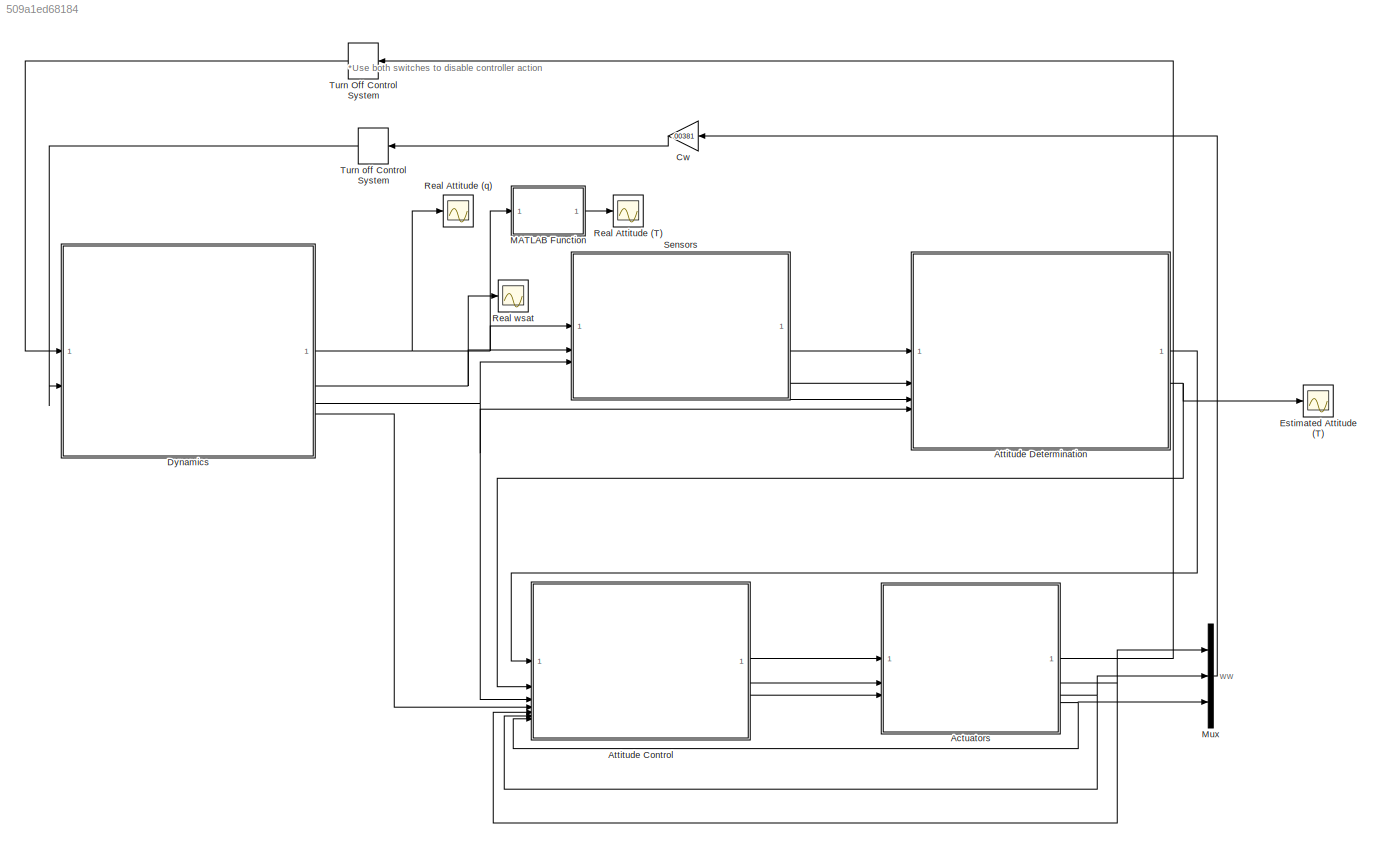
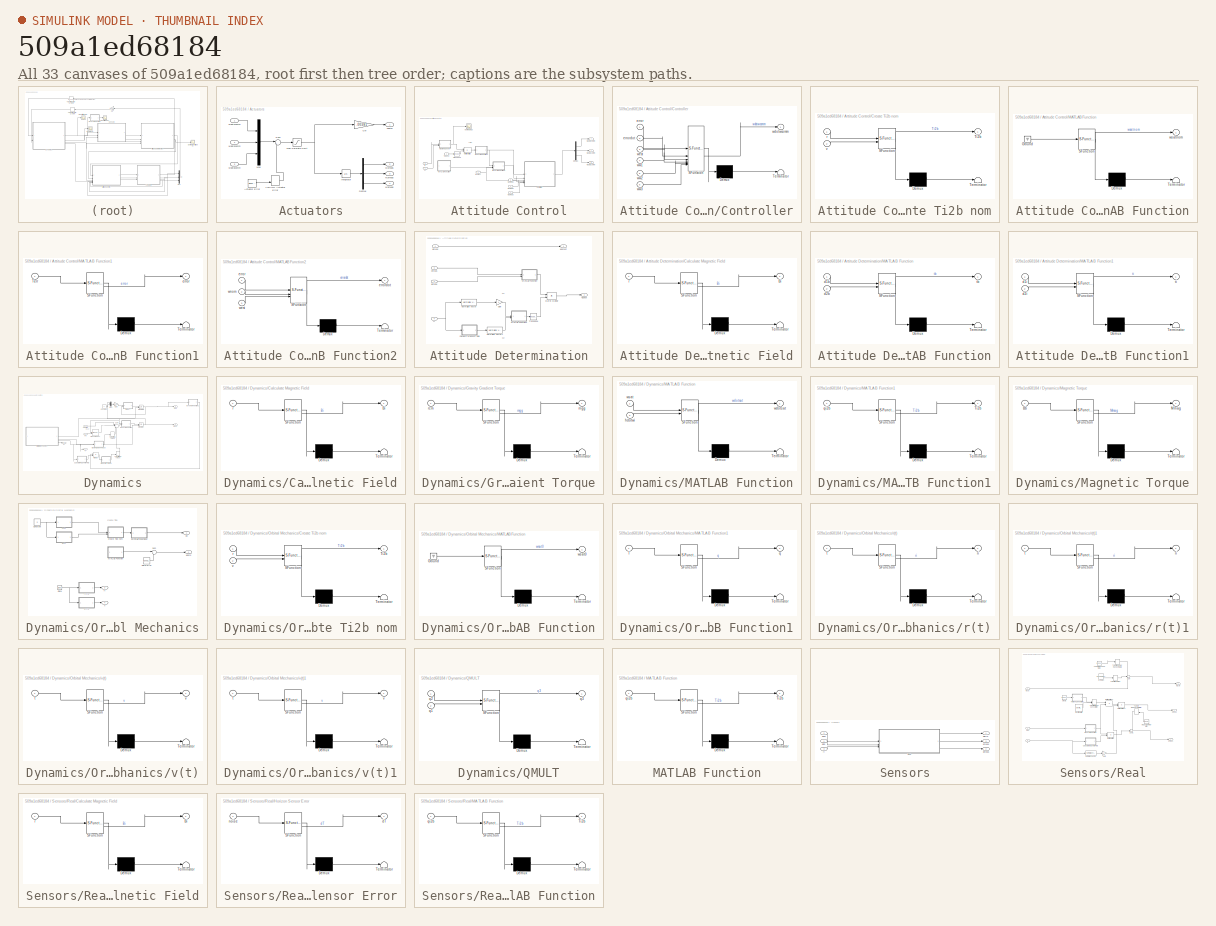
[diagram: thumbnail index - all 33 canvases of the model, root first then tree order]
MODEL slx_509a1ed68184
KIND model
CONFIG AbsTol = auto
CONFIG EnableMultiTasking = off
CONFIG FixedStep = auto
CONFIG MaxStep = auto
CONFIG MinStep = auto
CONFIG RelTol = 1e-3
CONFIG SampleTimeConstraint = Unconstrained
CONFIG SolverName = VariableStepAuto
CONFIG StartTime = 0.0
CONFIG StopTime = 5930
BLOCK [SubSystem] Actuators
BLOCK [Reference] Actuators/Actuator Error  REF=simulink/Sources/Band-Limited
White Noise
  SourceBlock = simulink/Sources/Band-Limited\nWhite Noise
  SourceType = Band-Limited White Noise.
BLOCK [Gain] Actuators/Cw
  Gain = .00381
BLOCK [Demux] Actuators/Demux
  Outputs = 3
BLOCK [Integrator] Actuators/Integrator
  InitialCondition = [0;0;0]
BLOCK [Saturate] Actuators/Max Spinrate Limit
  LowerLimit = -262*[1;1;1]
  UpperLimit = 262*[1;1;1]
BLOCK [Mux] Actuators/Mux
  DisplayOption = bar
  Inputs = 3
BLOCK [Sum] Actuators/Sum
  Inputs = |++
BLOCK [ManualSwitch] Actuators/Turn Off Actuator Error
  CurrentSetting = 0
BLOCK [Outport] Actuators/hdotw
BLOCK [Outport] Actuators/w1meas
  Port = 2
BLOCK [Outport] Actuators/w2meas
  Port = 3
BLOCK [Outport] Actuators/w3meas
  Port = 4
BLOCK [Inport] Actuators/wdot1comm
BLOCK [Inport] Actuators/wdot2comm
  Port = 2
BLOCK [Inport] Actuators/wdot3comm
  Port = 3
BLOCK [SubSystem] Attitude Control
BLOCK [SubSystem] Attitude Control/Controller
  ErrorFcn = Stateflow.Translate.translate
  LibrarySourceBlock = simulink/User-Defined\nFunctions/MATLAB Function
  PermitHierarchicalResolution = ExplicitOnly
  SFBlockType = MATLAB Function
  TreatAsAtomicUnit = on
BLOCK [Demux] Attitude Control/Controller/ Demux 
  Outputs = 1
BLOCK [S-Function] Attitude Control/Controller/ SFunction 
  EnableBusSupport = on
  FunctionName = sf_sfun
  PortCounts = [6 2]
  SFcnIsStateOwnerBlock = off
  SFunctionDeploymentMode = off
  Tag = Stateflow S-Function 18
BLOCK [Terminator] Attitude Control/Controller/ Terminator 
BLOCK [Inport] Attitude Control/Controller/error
BLOCK [Inport] Attitude Control/Controller/errordot
  Port = 2
BLOCK [Outport] Attitude Control/Controller/wdotwcomm
BLOCK [Inport] Attitude Control/Controller/west
  Port = 3
BLOCK [Inport] Attitude Control/Controller/ww1
  Port = 4
BLOCK [Inport] Attitude Control/Controller/ww2
  Port = 5
BLOCK [Inport] Attitude Control/Controller/ww3
  Port = 6
BLOCK [SubSystem] Attitude Control/Create Ti2b nom
  ErrorFcn = Stateflow.Translate.translate
  LibrarySourceBlock = simulink/User-Defined\nFunctions/MATLAB Function
  PermitHierarchicalResolution = ExplicitOnly
  SFBlockType = MATLAB Function
  TreatAsAtomicUnit = on
BLOCK [Demux] Attitude Control/Create Ti2b nom/ Demux 
  Outputs = 1
BLOCK [S-Function] Attitude Control/Create Ti2b nom/ SFunction 
  EnableBusSupport = on
  FunctionName = sf_sfun
  PortCounts = [2 2]
  SFcnIsStateOwnerBlock = off
  SFunctionDeploymentMode = off
  Tag = Stateflow S-Function 14
BLOCK [Terminator] Attitude Control/Create Ti2b nom/ Terminator 
BLOCK [Outport] Attitude Control/Create Ti2b nom/Ti2b
BLOCK [Inport] Attitude Control/Create Ti2b nom/r
BLOCK [Inport] Attitude Control/Create Ti2b nom/v
  Port = 2
BLOCK [Demux] Attitude Control/Demux
  Outputs = 3
BLOCK [SubSystem] Attitude Control/MATLAB Function
  ErrorFcn = Stateflow.Translate.translate
  LibrarySourceBlock = simulink/User-Defined\nFunctions/MATLAB Function
  PermitHierarchicalResolution = ExplicitOnly
  SFBlockType = MATLAB Function
  TreatAsAtomicUnit = on
BLOCK [Demux] Attitude Control/MATLAB Function/ Demux 
  Outputs = 1
BLOCK [Ground] Attitude Control/MATLAB Function/ Ground 
BLOCK [S-Function] Attitude Control/MATLAB Function/ SFunction 
  EnableBusSupport = on
  FunctionName = sf_sfun
  PortCounts = [1 2]
  SFcnIsStateOwnerBlock = off
  SFunctionDeploymentMode = off
  Tag = Stateflow S-Function 15
BLOCK [Terminator] Attitude Control/MATLAB Function/ Terminator 
BLOCK [Outport] Attitude Control/MATLAB Function/wsatnom
BLOCK [SubSystem] Attitude Control/MATLAB Function1
  ErrorFcn = Stateflow.Translate.translate
  LibrarySourceBlock = simulink/User-Defined\nFunctions/MATLAB Function
  PermitHierarchicalResolution = ExplicitOnly
  SFBlockType = MATLAB Function
  TreatAsAtomicUnit = on
BLOCK [Demux] Attitude Control/MATLAB Function1/ Demux 
  Outputs = 1
BLOCK [S-Function] Attitude Control/MATLAB Function1/ SFunction 
  EnableBusSupport = on
  FunctionName = sf_sfun
  PortCounts = [1 2]
  SFcnIsStateOwnerBlock = off
  SFunctionDeploymentMode = off
  Tag = Stateflow S-Function 16
BLOCK [Terminator] Attitude Control/MATLAB Function1/ Terminator 
BLOCK [Inport] Attitude Control/MATLAB Function1/Terr
BLOCK [Outport] Attitude Control/MATLAB Function1/error
BLOCK [SubSystem] Attitude Control/MATLAB Function2
  ErrorFcn = Stateflow.Translate.translate
  LibrarySourceBlock = simulink/User-Defined\nFunctions/MATLAB Function
  PermitHierarchicalResolution = ExplicitOnly
  SFBlockType = MATLAB Function
  TreatAsAtomicUnit = on
BLOCK [Demux] Attitude Control/MATLAB Function2/ Demux 
  Outputs = 1
BLOCK [S-Function] Attitude Control/MATLAB Function2/ SFunction 
  EnableBusSupport = on
  FunctionName = sf_sfun
  PortCounts = [3 2]
  SFcnIsStateOwnerBlock = off
  SFunctionDeploymentMode = off
  Tag = Stateflow S-Function 17
BLOCK [Terminator] Attitude Control/MATLAB Function2/ Terminator 
BLOCK [Inport] Attitude Control/MATLAB Function2/error
BLOCK [Outport] Attitude Control/MATLAB Function2/errordot
BLOCK [Inport] Attitude Control/MATLAB Function2/west
  Port = 3
BLOCK [Inport] Attitude Control/MATLAB Function2/wnom
  Port = 2
BLOCK [Product] Attitude Control/Matrix Multiply
  Multiplication = Matrix(*)
BLOCK [Scope] Attitude Control/Nominal Ti2b
  Floating = off
  NumInputPorts = 1
  ScopeSpecificationString = Simulink.scopes.TimeScopeBlockCfg('CurrentConfiguration', extmgr.ConfigurationSet(extmgr.Configuration('Core','General UI',true),extmgr.Configuration('Core','Source UI',true),extmgr.Configuration('Sources','WiredSimulink',true,'DataLoggingVariableName','ScopeData2'),extmgr.Configuration('Visuals','Time Domain',true,'SerializedDisplays',{struct('MinYLimReal','-1.25','MaxYLimReal','1.25','YLabelReal...<+1399ch>
BLOCK [Inport] Attitude Control/Ti2best
  Port = 2
BLOCK [Math] Attitude Control/Transpose
  Operator = transpose
BLOCK [Inport] Attitude Control/ri
  Port = 3
BLOCK [Inport] Attitude Control/vi
  Port = 4
BLOCK [Inport] Attitude Control/w1meas
  Port = 5
BLOCK [Inport] Attitude Control/w2meas
  Port = 6
BLOCK [Inport] Attitude Control/w3meas
  Port = 7
BLOCK [Outport] Attitude Control/wdot1comm
BLOCK [Outport] Attitude Control/wdot2comm
  Port = 2
BLOCK [Outport] Attitude Control/wdot3comm
  Port = 3
BLOCK [Inport] Attitude Control/wsatest
BLOCK [SubSystem] Attitude Determination
BLOCK [Inport] Attitude Determination/Bmeas
  Port = 2
BLOCK [SubSystem] Attitude Determination/Calculate Magnetic Field
  ErrorFcn = Stateflow.Translate.translate
  LibrarySourceBlock = simulink/User-Defined\nFunctions/MATLAB Function
  PermitHierarchicalResolution = ExplicitOnly
  SFBlockType = MATLAB Function
  TreatAsAtomicUnit = on
BLOCK [Demux] Attitude Determination/Calculate Magnetic Field/ Demux 
  Outputs = 1
BLOCK [S-Function] Attitude Determination/Calculate Magnetic Field/ SFunction 
  EnableBusSupport = on
  FunctionName = sf_sfun
  PortCounts = [1 2]
  SFcnIsStateOwnerBlock = off
  SFunctionDeploymentMode = off
  Tag = Stateflow S-Function 7
BLOCK [Terminator] Attitude Determination/Calculate Magnetic Field/ Terminator 
BLOCK [Outport] Attitude Determination/Calculate Magnetic Field/Bi
BLOCK [Inport] Attitude Determination/Calculate Magnetic Field/r
BLOCK [Gain] Attitude Determination/Gain
  Gain = -1
BLOCK [SubSystem] Attitude Determination/MATLAB Function
  ErrorFcn = Stateflow.Translate.translate
  LibrarySourceBlock = simulink/User-Defined\nFunctions/MATLAB Function
  PermitHierarchicalResolution = ExplicitOnly
  SFBlockType = MATLAB Function
  TreatAsAtomicUnit = on
BLOCK [Demux] Attitude Determination/MATLAB Function/ Demux 
  Outputs = 1
BLOCK [S-Function] Attitude Determination/MATLAB Function/ SFunction 
  EnableBusSupport = on
  FunctionName = sf_sfun
  PortCounts = [2 2]
  SFcnIsStateOwnerBlock = off
  SFunctionDeploymentMode = off
  Tag = Stateflow S-Function 8
BLOCK [Terminator] Attitude Determination/MATLAB Function/ Terminator 
BLOCK [Inport] Attitude Determination/MATLAB Function/d1b
BLOCK [Inport] Attitude Determination/MATLAB Function/d2b
  Port = 2
BLOCK [Outport] Attitude Determination/MATLAB Function/tb
BLOCK [SubSystem] Attitude Determination/MATLAB Function1
  ErrorFcn = Stateflow.Translate.translate
  LibrarySourceBlock = simulink/User-Defined\nFunctions/MATLAB Function
  PermitHierarchicalResolution = ExplicitOnly
  SFBlockType = MATLAB Function
  TreatAsAtomicUnit = on
BLOCK [Demux] Attitude Determination/MATLAB Function1/ Demux 
  Outputs = 1
BLOCK [S-Function] Attitude Determination/MATLAB Function1/ SFunction 
  EnableBusSupport = on
  FunctionName = sf_sfun
  PortCounts = [2 2]
  SFcnIsStateOwnerBlock = off
  SFunctionDeploymentMode = off
  Tag = Stateflow S-Function 9
BLOCK [Terminator] Attitude Determination/MATLAB Function1/ Terminator 
BLOCK [Inport] Attitude Determination/MATLAB Function1/d1i
BLOCK [Inport] Attitude Determination/MATLAB Function1/d2i
  Port = 2
BLOCK [Outport] Attitude Determination/MATLAB Function1/ti
BLOCK [Product] Attitude Determination/Matrix Multiply
  Multiplication = Matrix(*)
BLOCK [Reference] Attitude Determination/Normalize Vector  REF=vrlib/Utilities/Normalize Vector
  SourceBlock = vrlib/Utilities/Normalize Vector
  SourceType = Normalize Vector
BLOCK [Reference] Attitude Determination/Normalize Vector1  REF=vrlib/Utilities/Normalize Vector
  SourceBlock = vrlib/Utilities/Normalize Vector
  SourceType = Normalize Vector
BLOCK [Outport] Attitude Determination/Ti2best
  Port = 2
BLOCK [Math] Attitude Determination/Transpose
  Operator = transpose
BLOCK [Inport] Attitude Determination/dmeas
  Port = 3
BLOCK [Inport] Attitude Determination/ri
  Port = 4
BLOCK [Inport] Attitude Determination/wmeas
BLOCK [Outport] Attitude Determination/wsatest
BLOCK [Gain] Cw
  Gain = .00381
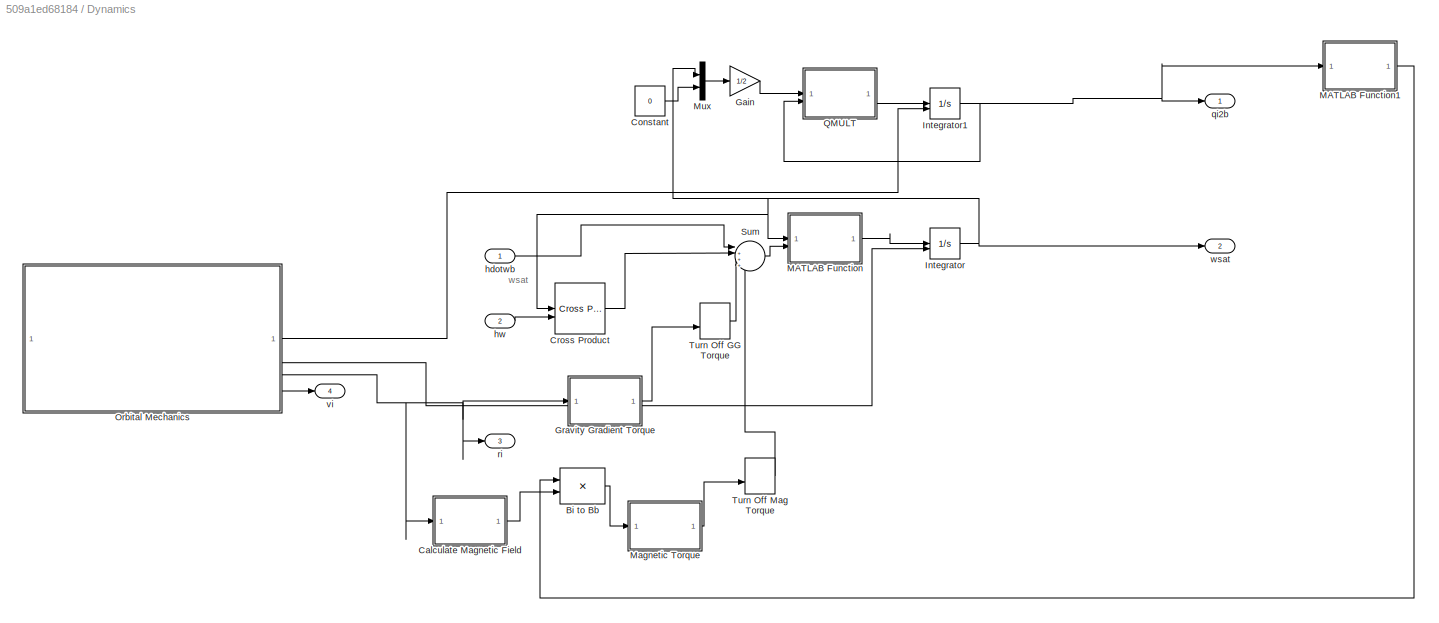
BLOCK [SubSystem] Dynamics
BLOCK [Product] Dynamics/Bi to Bb
  Multiplication = Matrix(*)
BLOCK [SubSystem] Dynamics/Calculate Magnetic Field
  ErrorFcn = Stateflow.Translate.translate
  LibrarySourceBlock = simulink/User-Defined\nFunctions/MATLAB Function
  PermitHierarchicalResolution = ExplicitOnly
  SFBlockType = MATLAB Function
  TreatAsAtomicUnit = on
BLOCK [Demux] Dynamics/Calculate Magnetic Field/ Demux 
  Outputs = 1
BLOCK [S-Function] Dynamics/Calculate Magnetic Field/ SFunction 
  EnableBusSupport = on
  FunctionName = sf_sfun
  PortCounts = [1 2]
  SFcnIsStateOwnerBlock = off
  SFunctionDeploymentMode = off
  Tag = Stateflow S-Function 26
BLOCK [Terminator] Dynamics/Calculate Magnetic Field/ Terminator 
BLOCK [Outport] Dynamics/Calculate Magnetic Field/Bi
BLOCK [Inport] Dynamics/Calculate Magnetic Field/r
BLOCK [Constant] Dynamics/Constant
  Value = 0
BLOCK [Reference] Dynamics/Cross Product  REF=matrix_library/Cross Product
  LibrarySourceBlock = simulink/Matrix\nOperations/Cross Product
  SourceBlock = matrix_library/Cross Product
  SourceType = CrossProduct
BLOCK [Gain] Dynamics/Gain
  Gain = 1/2
BLOCK [SubSystem] Dynamics/Gravity Gradient Torque
  ErrorFcn = Stateflow.Translate.translate
  LibrarySourceBlock = simulink/User-Defined\nFunctions/MATLAB Function
  PermitHierarchicalResolution = ExplicitOnly
  SFBlockType = MATLAB Function
  TreatAsAtomicUnit = on
BLOCK [Demux] Dynamics/Gravity Gradient Torque/ Demux 
  Outputs = 1
BLOCK [S-Function] Dynamics/Gravity Gradient Torque/ SFunction 
  EnableBusSupport = on
  FunctionName = sf_sfun
  PortCounts = [1 2]
  SFcnIsStateOwnerBlock = off
  SFunctionDeploymentMode = off
  Tag = Stateflow S-Function 21
BLOCK [Terminator] Dynamics/Gravity Gradient Torque/ Terminator 
BLOCK [Outport] Dynamics/Gravity Gradient Torque/mgg
BLOCK [Inport] Dynamics/Gravity Gradient Torque/rcm
BLOCK [Integrator] Dynamics/Integrator
  InitialConditionSource = external
BLOCK [Integrator] Dynamics/Integrator1
  InitialConditionSource = external
BLOCK [SubSystem] Dynamics/MATLAB Function
  ErrorFcn = Stateflow.Translate.translate
  LibrarySourceBlock = simulink/User-Defined\nFunctions/MATLAB Function
  PermitHierarchicalResolution = ExplicitOnly
  SFBlockType = MATLAB Function
  TreatAsAtomicUnit = on
BLOCK [Demux] Dynamics/MATLAB Function/ Demux 
  Outputs = 1
BLOCK [S-Function] Dynamics/MATLAB Function/ SFunction 
  EnableBusSupport = on
  FunctionName = sf_sfun
  PortCounts = [2 2]
  SFcnIsStateOwnerBlock = off
  SFunctionDeploymentMode = off
  Tag = Stateflow S-Function 1
BLOCK [Terminator] Dynamics/MATLAB Function/ Terminator 
BLOCK [Inport] Dynamics/MATLAB Function/hdotwi
  Port = 2
BLOCK [Outport] Dynamics/MATLAB Function/wdotsat
BLOCK [Inport] Dynamics/MATLAB Function/wsat
BLOCK [SubSystem] Dynamics/MATLAB Function1
  ErrorFcn = Stateflow.Translate.translate
  LibrarySourceBlock = simulink/User-Defined\nFunctions/MATLAB Function
  PermitHierarchicalResolution = ExplicitOnly
  SFBlockType = MATLAB Function
  TreatAsAtomicUnit = on
BLOCK [Demux] Dynamics/MATLAB Function1/ Demux 
  Outputs = 1
BLOCK [S-Function] Dynamics/MATLAB Function1/ SFunction 
  EnableBusSupport = on
  FunctionName = sf_sfun
  PortCounts = [1 2]
  SFcnIsStateOwnerBlock = off
  SFunctionDeploymentMode = off
  Tag = Stateflow S-Function 22
BLOCK [Terminator] Dynamics/MATLAB Function1/ Terminator 
BLOCK [Outport] Dynamics/MATLAB Function1/Ti2b
BLOCK [Inport] Dynamics/MATLAB Function1/qi2b
BLOCK [SubSystem] Dynamics/Magnetic Torque
  ErrorFcn = Stateflow.Translate.translate
  LibrarySourceBlock = simulink/User-Defined\nFunctions/MATLAB Function
  PermitHierarchicalResolution = ExplicitOnly
  SFBlockType = MATLAB Function
  TreatAsAtomicUnit = on
BLOCK [Demux] Dynamics/Magnetic Torque/ Demux 
  Outputs = 1
BLOCK [S-Function] Dynamics/Magnetic Torque/ SFunction 
  EnableBusSupport = on
  FunctionName = sf_sfun
  PortCounts = [1 2]
  SFcnIsStateOwnerBlock = off
  SFunctionDeploymentMode = off
  Tag = Stateflow S-Function 27
BLOCK [Terminator] Dynamics/Magnetic Torque/ Terminator 
BLOCK [Inport] Dynamics/Magnetic Torque/Bb
BLOCK [Outport] Dynamics/Magnetic Torque/Mmag
BLOCK [Mux] Dynamics/Mux
  DisplayOption = bar
  Inputs = 2
BLOCK [SubSystem] Dynamics/Orbital Mechanics
BLOCK [Clock] Dynamics/Orbital Mechanics/Clock
BLOCK [Constant] Dynamics/Orbital Mechanics/Constant
  Value = 0
BLOCK [SubSystem] Dynamics/Orbital Mechanics/Create Ti2b nom
  ErrorFcn = Stateflow.Translate.translate
  LibrarySourceBlock = simulink/User-Defined\nFunctions/MATLAB Function
  PermitHierarchicalResolution = ExplicitOnly
  SFBlockType = MATLAB Function
  TreatAsAtomicUnit = on
BLOCK [Demux] Dynamics/Orbital Mechanics/Create Ti2b nom/ Demux 
  Outputs = 1
BLOCK [S-Function] Dynamics/Orbital Mechanics/Create Ti2b nom/ SFunction 
  EnableBusSupport = on
  FunctionName = sf_sfun
  PortCounts = [2 2]
  SFcnIsStateOwnerBlock = off
  SFunctionDeploymentMode = off
  Tag = Stateflow S-Function 11
BLOCK [Terminator] Dynamics/Orbital Mechanics/Create Ti2b nom/ Terminator 
BLOCK [Outport] Dynamics/Orbital Mechanics/Create Ti2b nom/Ti2b
BLOCK [Inport] Dynamics/Orbital Mechanics/Create Ti2b nom/r
BLOCK [Inport] Dynamics/Orbital Mechanics/Create Ti2b nom/v
  Port = 2
BLOCK [SubSystem] Dynamics/Orbital Mechanics/MATLAB Function
  ErrorFcn = Stateflow.Translate.translate
  LibrarySourceBlock = simulink/User-Defined\nFunctions/MATLAB Function
  PermitHierarchicalResolution = ExplicitOnly
  SFBlockType = MATLAB Function
  TreatAsAtomicUnit = on
BLOCK [Demux] Dynamics/Orbital Mechanics/MATLAB Function/ Demux 
  Outputs = 1
BLOCK [Ground] Dynamics/Orbital Mechanics/MATLAB Function/ Ground 
BLOCK [S-Function] Dynamics/Orbital Mechanics/MATLAB Function/ SFunction 
  EnableBusSupport = on
  FunctionName = sf_sfun
  PortCounts = [1 2]
  SFcnIsStateOwnerBlock = off
  SFunctionDeploymentMode = off
  Tag = Stateflow S-Function 12
BLOCK [Terminator] Dynamics/Orbital Mechanics/MATLAB Function/ Terminator 
BLOCK [Outport] Dynamics/Orbital Mechanics/MATLAB Function/wsat0
BLOCK [SubSystem] Dynamics/Orbital Mechanics/MATLAB Function1
  ErrorFcn = Stateflow.Translate.translate
  LibrarySourceBlock = simulink/User-Defined\nFunctions/MATLAB Function
  PermitHierarchicalResolution = ExplicitOnly
  SFBlockType = MATLAB Function
  TreatAsAtomicUnit = on
BLOCK [Demux] Dynamics/Orbital Mechanics/MATLAB Function1/ Demux 
  Outputs = 1
BLOCK [S-Function] Dynamics/Orbital Mechanics/MATLAB Function1/ SFunction 
  EnableBusSupport = on
  FunctionName = sf_sfun
  PortCounts = [1 2]
  SFcnIsStateOwnerBlock = off
  SFunctionDeploymentMode = off
  Tag = Stateflow S-Function 13
BLOCK [Terminator] Dynamics/Orbital Mechanics/MATLAB Function1/ Terminator 
BLOCK [Inport] Dynamics/Orbital Mechanics/MATLAB Function1/T
BLOCK [Outport] Dynamics/Orbital Mechanics/MATLAB Function1/q
BLOCK [Constant] Dynamics/Orbital Mechanics/Roll w error
  Value = [0.005; 0; 0]
BLOCK [Sum] Dynamics/Orbital Mechanics/Sum
  Inputs = |++
BLOCK [Outport] Dynamics/Orbital Mechanics/q0
BLOCK [SubSystem] Dynamics/Orbital Mechanics/r(t)
  ErrorFcn = Stateflow.Translate.translate
  LibrarySourceBlock = simulink/User-Defined\nFunctions/MATLAB Function
  PermitHierarchicalResolution = ExplicitOnly
  SFBlockType = MATLAB Function
  TreatAsAtomicUnit = on
BLOCK [Demux] Dynamics/Orbital Mechanics/r(t)/ Demux 
  Outputs = 1
BLOCK [S-Function] Dynamics/Orbital Mechanics/r(t)/ SFunction 
  EnableBusSupport = on
  FunctionName = sf_sfun
  PortCounts = [1 2]
  SFcnIsStateOwnerBlock = off
  SFunctionDeploymentMode = off
  Tag = Stateflow S-Function 2
BLOCK [Terminator] Dynamics/Orbital Mechanics/r(t)/ Terminator 
BLOCK [Outport] Dynamics/Orbital Mechanics/r(t)/ri
BLOCK [Inport] Dynamics/Orbital Mechanics/r(t)/t
BLOCK [SubSystem] Dynamics/Orbital Mechanics/r(t)1
  ErrorFcn = Stateflow.Translate.translate
  LibrarySourceBlock = simulink/User-Defined\nFunctions/MATLAB Function
  PermitHierarchicalResolution = ExplicitOnly
  SFBlockType = MATLAB Function
  TreatAsAtomicUnit = on
BLOCK [Demux] Dynamics/Orbital Mechanics/r(t)1/ Demux 
  Outputs = 1
BLOCK [S-Function] Dynamics/Orbital Mechanics/r(t)1/ SFunction 
  EnableBusSupport = on
  FunctionName = sf_sfun
  PortCounts = [1 2]
  SFcnIsStateOwnerBlock = off
  SFunctionDeploymentMode = off
  Tag = Stateflow S-Function 19
BLOCK [Terminator] Dynamics/Orbital Mechanics/r(t)1/ Terminator 
BLOCK [Outport] Dynamics/Orbital Mechanics/r(t)1/ri
BLOCK [Inport] Dynamics/Orbital Mechanics/r(t)1/t
BLOCK [Outport] Dynamics/Orbital Mechanics/ri
  Port = 3
BLOCK [Outport] Dynamics/Orbital Mechanics/v
  Port = 4
BLOCK [SubSystem] Dynamics/Orbital Mechanics/v(t)
  ErrorFcn = Stateflow.Translate.translate
  LibrarySourceBlock = simulink/User-Defined\nFunctions/MATLAB Function
  PermitHierarchicalResolution = ExplicitOnly
  SFBlockType = MATLAB Function
  TreatAsAtomicUnit = on
BLOCK [Demux] Dynamics/Orbital Mechanics/v(t)/ Demux 
  Outputs = 1
BLOCK [S-Function] Dynamics/Orbital Mechanics/v(t)/ SFunction 
  EnableBusSupport = on
  FunctionName = sf_sfun
  PortCounts = [1 2]
  SFcnIsStateOwnerBlock = off
  SFunctionDeploymentMode = off
  Tag = Stateflow S-Function 3
BLOCK [Terminator] Dynamics/Orbital Mechanics/v(t)/ Terminator 
BLOCK [Inport] Dynamics/Orbital Mechanics/v(t)/t
BLOCK [Outport] Dynamics/Orbital Mechanics/v(t)/v
BLOCK [SubSystem] Dynamics/Orbital Mechanics/v(t)1
  ErrorFcn = Stateflow.Translate.translate
  LibrarySourceBlock = simulink/User-Defined\nFunctions/MATLAB Function
  PermitHierarchicalResolution = ExplicitOnly
  SFBlockType = MATLAB Function
  TreatAsAtomicUnit = on
BLOCK [Demux] Dynamics/Orbital Mechanics/v(t)1/ Demux 
  Outputs = 1
BLOCK [S-Function] Dynamics/Orbital Mechanics/v(t)1/ SFunction 
  EnableBusSupport = on
  FunctionName = sf_sfun
  PortCounts = [1 2]
  SFcnIsStateOwnerBlock = off
  SFunctionDeploymentMode = off
  Tag = Stateflow S-Function 20
BLOCK [Terminator] Dynamics/Orbital Mechanics/v(t)1/ Terminator 
BLOCK [Inport] Dynamics/Orbital Mechanics/v(t)1/t
BLOCK [Outport] Dynamics/Orbital Mechanics/v(t)1/v
BLOCK [Outport] Dynamics/Orbital Mechanics/wsat0
  Port = 2
BLOCK [SubSystem] Dynamics/QMULT
  ErrorFcn = Stateflow.Translate.translate
  LibrarySourceBlock = simulink/User-Defined\nFunctions/MATLAB Function
  PermitHierarchicalResolution = ExplicitOnly
  SFBlockType = MATLAB Function
  TreatAsAtomicUnit = on
BLOCK [Demux] Dynamics/QMULT/ Demux 
  Outputs = 1
BLOCK [S-Function] Dynamics/QMULT/ SFunction 
  EnableBusSupport = on
  FunctionName = sf_sfun
  PortCounts = [2 2]
  SFcnIsStateOwnerBlock = off
  SFunctionDeploymentMode = off
  Tag = Stateflow S-Function 10
BLOCK [Terminator] Dynamics/QMULT/ Terminator 
BLOCK [Inport] Dynamics/QMULT/q1
  Port = 2
BLOCK [Inport] Dynamics/QMULT/q2
BLOCK [Outport] Dynamics/QMULT/q3
BLOCK [Sum] Dynamics/Sum
  Inputs = |++++
BLOCK [ManualSwitch] Dynamics/Turn Off GG Torque
  CurrentSetting = 0
BLOCK [ManualSwitch] Dynamics/Turn Off Mag Torque
  CurrentSetting = 0
BLOCK [Inport] Dynamics/hdotwb
BLOCK [Inport] Dynamics/hw
  Port = 2
BLOCK [Outport] Dynamics/qi2b
BLOCK [Outport] Dynamics/ri
  Port = 3
BLOCK [Outport] Dynamics/vi
  Port = 4
BLOCK [Outport] Dynamics/wsat
  Port = 2
BLOCK [Scope] Estimated Attitude (T)
  Floating = off
  NumInputPorts = 1
  ScopeSpecificationString = Simulink.scopes.TimeScopeBlockCfg('CurrentConfiguration', extmgr.ConfigurationSet(extmgr.Configuration('Core','General UI',true),extmgr.Configuration('Core','Source UI',true),extmgr.Configuration('Sources','WiredSimulink',true,'DataLoggingVariableName','ScopeData4'),extmgr.Configuration('Visuals','Time Domain',true),extmgr.Configuration('Tools','Plot Navigation',true),extmgr.Configuration('Tools',...<+40ch>
BLOCK [SubSystem] MATLAB Function
  ErrorFcn = Stateflow.Translate.translate
  LibrarySourceBlock = simulink/User-Defined\nFunctions/MATLAB Function
  PermitHierarchicalResolution = ExplicitOnly
  SFBlockType = MATLAB Function
  TreatAsAtomicUnit = on
BLOCK [Demux] MATLAB Function/ Demux 
  Outputs = 1
BLOCK [S-Function] MATLAB Function/ SFunction 
  EnableBusSupport = on
  FunctionName = sf_sfun
  PortCounts = [1 2]
  SFcnIsStateOwnerBlock = off
  SFunctionDeploymentMode = off
  Tag = Stateflow S-Function 25
BLOCK [Terminator] MATLAB Function/ Terminator 
BLOCK [Outport] MATLAB Function/Ti2b
BLOCK [Inport] MATLAB Function/qi2b
BLOCK [Mux] Mux
  DisplayOption = bar
  Inputs = 3
BLOCK [Scope] Real Attitude (T)
  Floating = off
  NumInputPorts = 1
  ScopeSpecificationString = Simulink.scopes.TimeScopeBlockCfg('CurrentConfiguration', extmgr.ConfigurationSet(extmgr.Configuration('Core','General UI',true),extmgr.Configuration('Core','Source UI',true),extmgr.Configuration('Sources','WiredSimulink',true,'DataLoggingVariableName','ScopeData5'),extmgr.Configuration('Visuals','Time Domain',true,'SerializedDisplays',{struct('MinYLimReal','-1.08524','MaxYLimReal','1.23169','YLab...<+1394ch>
BLOCK [Scope] Real Attitude (q)
  Floating = off
  NumInputPorts = 1
  ScopeSpecificationString = Simulink.scopes.TimeScopeBlockCfg('CurrentConfiguration', extmgr.ConfigurationSet(extmgr.Configuration('Core','General UI',true),extmgr.Configuration('Core','Source UI',true),extmgr.Configuration('Sources','WiredSimulink',true),extmgr.Configuration('Visuals','Time Domain',true,'SerializedDisplays',{struct('MinYLimReal','-1.0557','MaxYLimReal','1.14383','YLabelReal','','MinYLimMag','0.00000','MaxYL...<+1406ch>
BLOCK [Scope] Real wsat
  Floating = off
  NumInputPorts = 1
  ScopeSpecificationString = Simulink.scopes.TimeScopeBlockCfg('CurrentConfiguration', extmgr.ConfigurationSet(extmgr.Configuration('Core','General UI',true),extmgr.Configuration('Core','Source UI',true),extmgr.Configuration('Sources','WiredSimulink',true,'DataLoggingVariableName','ScopeData1'),extmgr.Configuration('Visuals','Time Domain',true,'SerializedDisplays',{struct('MinYLimReal','-0.01644','MaxYLimReal','0.06088','YLab...<+1451ch>
BLOCK [SubSystem] Sensors
BLOCK [Outport] Sensors/Bmeas
  Port = 2
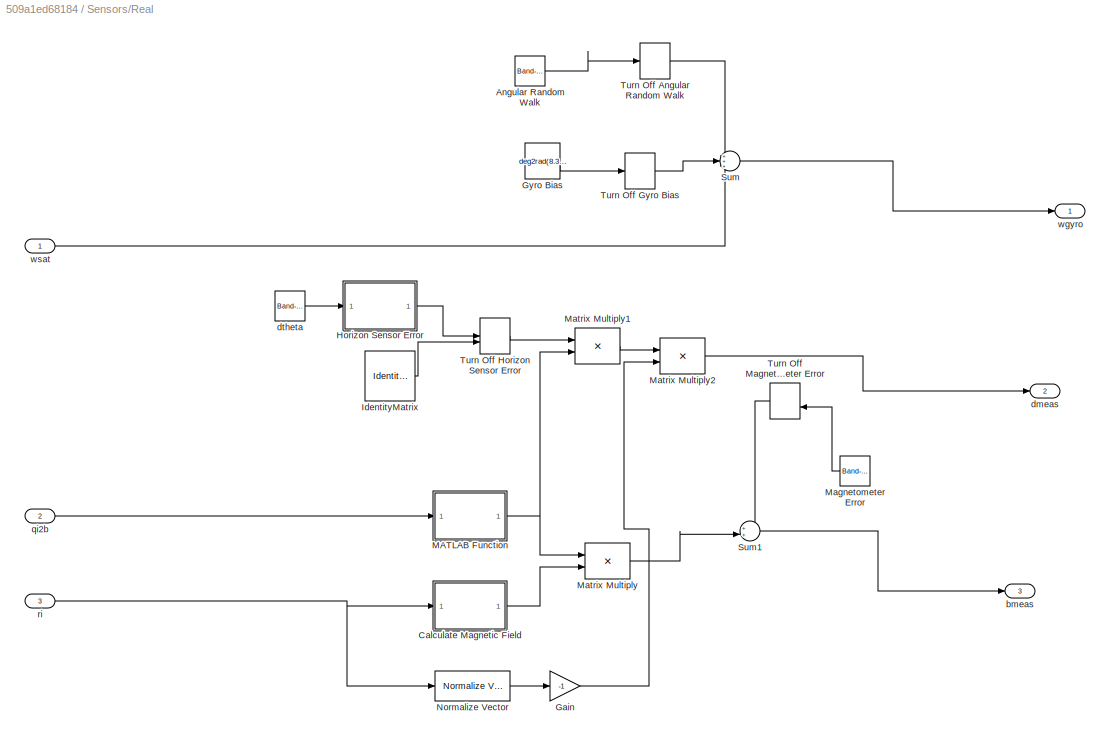
BLOCK [SubSystem] Sensors/Real
BLOCK [Reference] Sensors/Real/Angular Random Walk  REF=simulink/Sources/Band-Limited
White Noise
  SourceBlock = simulink/Sources/Band-Limited\nWhite Noise
  SourceType = Band-Limited White Noise.
BLOCK [SubSystem] Sensors/Real/Calculate Magnetic Field
  ErrorFcn = Stateflow.Translate.translate
  LibrarySourceBlock = simulink/User-Defined\nFunctions/MATLAB Function
  PermitHierarchicalResolution = ExplicitOnly
  SFBlockType = MATLAB Function
  TreatAsAtomicUnit = on
BLOCK [Demux] Sensors/Real/Calculate Magnetic Field/ Demux 
  Outputs = 1
BLOCK [S-Function] Sensors/Real/Calculate Magnetic Field/ SFunction 
  EnableBusSupport = on
  FunctionName = sf_sfun
  PortCounts = [1 2]
  SFcnIsStateOwnerBlock = off
  SFunctionDeploymentMode = off
  Tag = Stateflow S-Function 5
BLOCK [Terminator] Sensors/Real/Calculate Magnetic Field/ Terminator 
BLOCK [Outport] Sensors/Real/Calculate Magnetic Field/Bi
BLOCK [Inport] Sensors/Real/Calculate Magnetic Field/r
BLOCK [Gain] Sensors/Real/Gain
  Gain = -1
BLOCK [Constant] Sensors/Real/Gyro Bias
  Value = deg2rad(8.3e-5)*[1;1;1]
BLOCK [SubSystem] Sensors/Real/Horizon Sensor Error
  ErrorFcn = Stateflow.Translate.translate
  LibrarySourceBlock = simulink/User-Defined\nFunctions/MATLAB Function
  PermitHierarchicalResolution = ExplicitOnly
  SFBlockType = MATLAB Function
  TreatAsAtomicUnit = on
BLOCK [Demux] Sensors/Real/Horizon Sensor Error/ Demux 
  Outputs = 1
BLOCK [S-Function] Sensors/Real/Horizon Sensor Error/ SFunction 
  EnableBusSupport = on
  FunctionName = sf_sfun
  PortCounts = [1 2]
  SFcnIsStateOwnerBlock = off
  SFunctionDeploymentMode = off
  Tag = Stateflow S-Function 6
BLOCK [Terminator] Sensors/Real/Horizon Sensor Error/ Terminator 
BLOCK [Outport] Sensors/Real/Horizon Sensor Error/dT
BLOCK [Inport] Sensors/Real/Horizon Sensor Error/noise
BLOCK [IdentityMatrix] Sensors/Real/IdentityMatrix
  OutputDimensions = 3
BLOCK [SubSystem] Sensors/Real/MATLAB Function
  ErrorFcn = Stateflow.Translate.translate
  LibrarySourceBlock = simulink/User-Defined\nFunctions/MATLAB Function
  PermitHierarchicalResolution = ExplicitOnly
  SFBlockType = MATLAB Function
  TreatAsAtomicUnit = on
BLOCK [Demux] Sensors/Real/MATLAB Function/ Demux 
  Outputs = 1
BLOCK [S-Function] Sensors/Real/MATLAB Function/ SFunction 
  EnableBusSupport = on
  FunctionName = sf_sfun
  PortCounts = [1 2]
  SFcnIsStateOwnerBlock = off
  SFunctionDeploymentMode = off
  Tag = Stateflow S-Function 4
BLOCK [Terminator] Sensors/Real/MATLAB Function/ Terminator 
BLOCK [Outport] Sensors/Real/MATLAB Function/Ti2b
BLOCK [Inport] Sensors/Real/MATLAB Function/qi2b
BLOCK [Reference] Sensors/Real/Magnetometer Error  REF=simulink/Sources/Band-Limited
White Noise
  SourceBlock = simulink/Sources/Band-Limited\nWhite Noise
  SourceType = Band-Limited White Noise.
BLOCK [Product] Sensors/Real/Matrix Multiply
  Multiplication = Matrix(*)
BLOCK [Product] Sensors/Real/Matrix Multiply1
  Multiplication = Matrix(*)
BLOCK [Product] Sensors/Real/Matrix Multiply2
  Multiplication = Matrix(*)
BLOCK [Reference] Sensors/Real/Normalize Vector  REF=vrlib/Utilities/Normalize Vector
  SourceBlock = vrlib/Utilities/Normalize Vector
  SourceType = Normalize Vector
BLOCK [Sum] Sensors/Real/Sum
  Inputs = +++
BLOCK [Sum] Sensors/Real/Sum1
  Inputs = ++|
BLOCK [ManualSwitch] Sensors/Real/Turn Off Angular Random Walk
BLOCK [ManualSwitch] Sensors/Real/Turn Off Gyro Bias
BLOCK [ManualSwitch] Sensors/Real/Turn Off Horizon Sensor Error
BLOCK [ManualSwitch] Sensors/Real/Turn Off Magnetometer Error
  CurrentSetting = 0
BLOCK [Outport] Sensors/Real/bmeas
  Port = 3
BLOCK [Outport] Sensors/Real/dmeas
  Port = 2
BLOCK [Reference] Sensors/Real/dtheta  REF=simulink/Sources/Band-Limited
White Noise
  SourceBlock = simulink/Sources/Band-Limited\nWhite Noise
  SourceType = Band-Limited White Noise.
BLOCK [Inport] Sensors/Real/qi2b
  Port = 2
BLOCK [Inport] Sensors/Real/ri
  Port = 3
BLOCK [Outport] Sensors/Real/wgyro
BLOCK [Inport] Sensors/Real/wsat
BLOCK [Outport] Sensors/dmeas
  Port = 3
BLOCK [Inport] Sensors/qi2b
BLOCK [Inport] Sensors/ri
  Port = 3
BLOCK [Outport] Sensors/wgyro
BLOCK [Inport] Sensors/wsat
  Port = 2
BLOCK [ManualSwitch] Turn Off Control System
BLOCK [ManualSwitch] Turn off Control System
ANNOTATION (root): *Use both switches to disable controller action
ANNOTATION (root): ww
ANNOTATION Attitude Control: Terror
ANNOTATION Attitude Determination: d1i
ANNOTATION Attitude Determination: d2i
ANNOTATION Dynamics: wsat
ANNOTATION Dynamics/Orbital Mechanics: create Ti2b
LINE Actuators/Actuator Error:1 -> Actuators/Turn Off Actuator Error:2
LINE Actuators/Cw:1 -> Actuators/hdotw:1
LINE Actuators/Demux:1 -> Actuators/w1meas:1
LINE Actuators/Demux:2 -> Actuators/w2meas:1
LINE Actuators/Demux:3 -> Actuators/w3meas:1
LINE Actuators/Integrator:1 -> Actuators/Demux:1
NET Actuators/Max Spinrate Limit:1 -> Actuators/Cw:1, Actuators/Integrator:1
LINE Actuators/Mux:1 -> Actuators/Sum:1
LINE Actuators/Sum:1 -> Actuators/Max Spinrate Limit:1
LINE Actuators/Turn Off Actuator Error:1 -> Actuators/Sum:2
LINE Actuators/wdot1comm:1 -> Actuators/Mux:1
LINE Actuators/wdot2comm:1 -> Actuators/Mux:2
LINE Actuators/wdot3comm:1 -> Actuators/Mux:3
LINE Actuators:1 -> Turn Off Control System:1
NET Actuators:2 -> Attitude Control:5, Mux:1
NET Actuators:3 -> Attitude Control:6, Mux:2
NET Actuators:4 -> Attitude Control:7, Mux:3
LINE Attitude Control/Controller:1 -> Attitude Control/Demux:1
NET Attitude Control/Create Ti2b nom:1 -> Attitude Control/Matrix Multiply:1, Attitude Control/Nominal Ti2b:1
LINE Attitude Control/Demux:1 -> Attitude Control/wdot1comm:1
LINE Attitude Control/Demux:2 -> Attitude Control/wdot2comm:1
LINE Attitude Control/Demux:3 -> Attitude Control/wdot3comm:1
NET Attitude Control/MATLAB Function1:1 -> Attitude Control/Controller:1, Attitude Control/MATLAB Function2:1
LINE Attitude Control/MATLAB Function2:1 -> Attitude Control/Controller:2
LINE Attitude Control/MATLAB Function:1 -> Attitude Control/MATLAB Function2:2
LINE Attitude Control/Matrix Multiply:1 -> Attitude Control/MATLAB Function1:1
LINE Attitude Control/Ti2best:1 -> Attitude Control/Transpose:1
LINE Attitude Control/Transpose:1 -> Attitude Control/Matrix Multiply:2
LINE Attitude Control/ri:1 -> Attitude Control/Create Ti2b nom:1
LINE Attitude Control/vi:1 -> Attitude Control/Create Ti2b nom:2
LINE Attitude Control/w1meas:1 -> Attitude Control/Controller:4
LINE Attitude Control/w2meas:1 -> Attitude Control/Controller:5
LINE Attitude Control/w3meas:1 -> Attitude Control/Controller:6
NET Attitude Control/wsatest:1 -> Attitude Control/Controller:3, Attitude Control/MATLAB Function2:3
LINE Attitude Control:1 -> Actuators:1
LINE Attitude Control:2 -> Actuators:2
LINE Attitude Control:3 -> Actuators:3
LINE Attitude Determination/Bmeas:1 -> Attitude Determination/MATLAB Function:2
LINE Attitude Determination/Calculate Magnetic Field:1 -> Attitude Determination/Normalize Vector1:1
LINE Attitude Determination/Gain:1 -> Attitude Determination/MATLAB Function1:1
LINE Attitude Determination/MATLAB Function1:1 -> Attitude Determination/Transpose:1
LINE Attitude Determination/MATLAB Function:1 -> Attitude Determination/Matrix Multiply:1
LINE Attitude Determination/Matrix Multiply:1 -> Attitude Determination/Ti2best:1
LINE Attitude Determination/Normalize Vector1:1 -> Attitude Determination/MATLAB Function1:2
LINE Attitude Determination/Normalize Vector:1 -> Attitude Determination/Gain:1
LINE Attitude Determination/Transpose:1 -> Attitude Determination/Matrix Multiply:2
LINE Attitude Determination/dmeas:1 -> Attitude Determination/MATLAB Function:1
NET Attitude Determination/ri:1 -> Attitude Determination/Calculate Magnetic Field:1, Attitude Determination/Normalize Vector:1
LINE Attitude Determination/wmeas:1 -> Attitude Determination/wsatest:1
LINE Attitude Determination:1 -> Attitude Control:1
NET Attitude Determination:2 -> Attitude Control:2, Estimated Attitude (T):1
LINE Cw:1 -> Turn off Control System:1
LINE Dynamics/Bi to Bb:1 -> Dynamics/Magnetic Torque:1
LINE Dynamics/Calculate Magnetic Field:1 -> Dynamics/Bi to Bb:2
LINE Dynamics/Constant:1 -> Dynamics/Mux:2
LINE Dynamics/Cross Product:1 -> Dynamics/Sum:2
LINE Dynamics/Gain:1 -> Dynamics/QMULT:1
LINE Dynamics/Gravity Gradient Torque:1 -> Dynamics/Turn Off GG Torque:2
NET Dynamics/Integrator1:1 -> Dynamics/MATLAB Function1:1, Dynamics/QMULT:2, Dynamics/qi2b:1
NET Dynamics/Integrator:1 -> Dynamics/Cross Product:1, Dynamics/MATLAB Function:1, Dynamics/Mux:1, Dynamics/wsat:1
LINE Dynamics/MATLAB Function1:1 -> Dynamics/Bi to Bb:1
LINE Dynamics/MATLAB Function:1 -> Dynamics/Integrator:1
LINE Dynamics/Magnetic Torque:1 -> Dynamics/Turn Off Mag Torque:2
LINE Dynamics/Mux:1 -> Dynamics/Gain:1
NET Dynamics/Orbital Mechanics/Clock:1 -> Dynamics/Orbital Mechanics/r(t)1:1, Dynamics/Orbital Mechanics/v(t)1:1
NET Dynamics/Orbital Mechanics/Constant:1 -> Dynamics/Orbital Mechanics/r(t):1, Dynamics/Orbital Mechanics/v(t):1
LINE Dynamics/Orbital Mechanics/Create Ti2b nom:1 -> Dynamics/Orbital Mechanics/MATLAB Function1:1
LINE Dynamics/Orbital Mechanics/MATLAB Function1:1 -> Dynamics/Orbital Mechanics/q0:1
LINE Dynamics/Orbital Mechanics/MATLAB Function:1 -> Dynamics/Orbital Mechanics/Sum:1
LINE Dynamics/Orbital Mechanics/Roll w error:1 -> Dynamics/Orbital Mechanics/Sum:2
LINE Dynamics/Orbital Mechanics/Sum:1 -> Dynamics/Orbital Mechanics/wsat0:1
LINE Dynamics/Orbital Mechanics/r(t)1:1 -> Dynamics/Orbital Mechanics/ri:1
LINE Dynamics/Orbital Mechanics/r(t):1 -> Dynamics/Orbital Mechanics/Create Ti2b nom:1
LINE Dynamics/Orbital Mechanics/v(t)1:1 -> Dynamics/Orbital Mechanics/v:1
LINE Dynamics/Orbital Mechanics/v(t):1 -> Dynamics/Orbital Mechanics/Create Ti2b nom:2
LINE Dynamics/Orbital Mechanics:1 -> Dynamics/Integrator1:2
LINE Dynamics/Orbital Mechanics:2 -> Dynamics/Integrator:2
NET Dynamics/Orbital Mechanics:3 -> Dynamics/Calculate Magnetic Field:1, Dynamics/Gravity Gradient Torque:1, Dynamics/ri:1
LINE Dynamics/Orbital Mechanics:4 -> Dynamics/vi:1
LINE Dynamics/QMULT:1 -> Dynamics/Integrator1:1
LINE Dynamics/Sum:1 -> Dynamics/MATLAB Function:2
LINE Dynamics/Turn Off GG Torque:1 -> Dynamics/Sum:3
LINE Dynamics/Turn Off Mag Torque:1 -> Dynamics/Sum:4
LINE Dynamics/hdotwb:1 -> Dynamics/Sum:1
LINE Dynamics/hw:1 -> Dynamics/Cross Product:2
NET Dynamics:1 -> MATLAB Function:1, Real Attitude (q):1, Sensors:1
NET Dynamics:2 -> Real wsat:1, Sensors:2
NET Dynamics:3 -> Attitude Control:3, Attitude Determination:4, Sensors:3
LINE Dynamics:4 -> Attitude Control:4
LINE MATLAB Function:1 -> Real Attitude (T):1
LINE Mux:1 -> Cw:1
LINE Sensors/Real/Angular Random Walk:1 -> Sensors/Real/Turn Off Angular Random Walk:1
LINE Sensors/Real/Calculate Magnetic Field:1 -> Sensors/Real/Matrix Multiply:2
LINE Sensors/Real/Gain:1 -> Sensors/Real/Matrix Multiply2:2
LINE Sensors/Real/Gyro Bias:1 -> Sensors/Real/Turn Off Gyro Bias:1
LINE Sensors/Real/Horizon Sensor Error:1 -> Sensors/Real/Turn Off Horizon Sensor Error:1
LINE Sensors/Real/IdentityMatrix:1 -> Sensors/Real/Turn Off Horizon Sensor Error:2
NET Sensors/Real/MATLAB Function:1 -> Sensors/Real/Matrix Multiply1:2, Sensors/Real/Matrix Multiply:1
LINE Sensors/Real/Magnetometer Error:1 -> Sensors/Real/Turn Off Magnetometer Error:2
LINE Sensors/Real/Matrix Multiply1:1 -> Sensors/Real/Matrix Multiply2:1
LINE Sensors/Real/Matrix Multiply2:1 -> Sensors/Real/dmeas:1
LINE Sensors/Real/Matrix Multiply:1 -> Sensors/Real/Sum1:2
LINE Sensors/Real/Normalize Vector:1 -> Sensors/Real/Gain:1
LINE Sensors/Real/Sum1:1 -> Sensors/Real/bmeas:1
LINE Sensors/Real/Sum:1 -> Sensors/Real/wgyro:1
LINE Sensors/Real/Turn Off Angular Random Walk:1 -> Sensors/Real/Sum:1
LINE Sensors/Real/Turn Off Gyro Bias:1 -> Sensors/Real/Sum:2
LINE Sensors/Real/Turn Off Horizon Sensor Error:1 -> Sensors/Real/Matrix Multiply1:1
LINE Sensors/Real/Turn Off Magnetometer Error:1 -> Sensors/Real/Sum1:1
LINE Sensors/Real/dtheta:1 -> Sensors/Real/Horizon Sensor Error:1
LINE Sensors/Real/qi2b:1 -> Sensors/Real/MATLAB Function:1
NET Sensors/Real/ri:1 -> Sensors/Real/Calculate Magnetic Field:1, Sensors/Real/Normalize Vector:1
LINE Sensors/Real/wsat:1 -> Sensors/Real/Sum:3
LINE Sensors/Real:1 -> Sensors/wgyro:1
LINE Sensors/Real:2 -> Sensors/dmeas:1
LINE Sensors/Real:3 -> Sensors/Bmeas:1
LINE Sensors/qi2b:1 -> Sensors/Real:2
LINE Sensors/ri:1 -> Sensors/Real:3
LINE Sensors/wsat:1 -> Sensors/Real:1
LINE Sensors:1 -> Attitude Determination:1
LINE Sensors:2 -> Attitude Determination:2
LINE Sensors:3 -> Attitude Determination:3
LINE Turn Off Control System:1 -> Dynamics:1
LINE Turn off Control System:1 -> Dynamics:2
note: NET lines group one-source signal fan-out (src -> all destinations, sorted); 1:1 wires keep LINE
CHART Dynamics/Orbital Mechanics/MATLAB Function1 states=1 transitions=1
  STATE_LABEL 'eML_blk_kernel()'
  STATE_LABEL 'SCRIPT:\nfunction q = T2q(T)\n\nq = zeros(4,1);\n\nq(4) = sqrt(.25*(1 + T(1,1) + T(2,2) + T(3,3)));\n\nq = (1/(4*q(4))) .* [T(2,3) - T(3,2); T(3,1) + T(1,3); T(1,2) + T(2,1); 4 * q(4)^2 ];\n\nend\n\n\n\n'
CHART Attitude Control/Create Ti2b nom states=1 transitions=1
  STATE_LABEL 'eML_blk_kernel()'
  STATE_LABEL "SCRIPT:\nfunction Ti2b = fcn(r,v)\n\nxib = -r / norm(r);\nyib = v / norm(v);\nzib = cross(xib,yib);\n\nTi2b = [xib'; yib'; zib'];\n"
CHART Attitude Control/MATLAB Function states=1 transitions=1
  STATE_LABEL 'eML_blk_kernel()'
  STATE_LABEL 'SCRIPT:\nfunction wsatnom = fcn()\nmu = 398600.0;\nrho = 6600;\nwmag = sqrt(mu / rho^3);\n\n\n\nwsatnom = wmag .* [0;0;1];\n\n\n\n'
CHART Dynamics/MATLAB Function states=1 transitions=1
  STATE_LABEL 'eML_blk_kernel()'
  STATE_LABEL 'SCRIPT:\nfunction wdotsat = fcn(wsat,hdotwi)\n\nJ = [17.53 0 0;\n     0 11.97 0;\n     0 0 11.97];\n\nwdotsat = inv(J) * (cross(-wsat,(J*wsat)) - hdotwi); %#ok<MINV> \nend'
CHART Attitude Control/MATLAB Function1 states=1 transitions=1
  STATE_LABEL 'eML_blk_kernel()'
  STATE_LABEL 'SCRIPT:\nfunction error = fcn(Terr)\n\nerror = -0.5 * [Terr(3,2) - Terr(2,3); \n                Terr(1,3) - Terr(3,1); \n                Terr(2,1) - Terr(1,2)];\n'
CHART Attitude Control/MATLAB Function2 states=1 transitions=1
  STATE_LABEL 'eML_blk_kernel()'
  STATE_LABEL 'SCRIPT:\nfunction errordot = fcn(error,wnom,west)\n\nerrordot = -skewsym(wnom)*error + (wnom - west);\n\nend\n\nfunction skewed = skewsym(v)\nskewed = [0 -v(3) v(2);\n          v(3) 0 -v(1);\n          -v(2) v(1) 0];\nend\n'
CHART Attitude Control/Controller states=1 transitions=1
  STATE_LABEL 'eML_blk_kernel()'
  STATE_LABEL 'SCRIPT:\nfunction wdotwcomm = fcn(error,errordot,west,ww1,ww2,ww3)\nJsat = [17.53 0 0; 0 11.97 0; 0 0 11.97];\nKd = -0.08*eye(3);\nKp = -0.05*eye(3);\nCw = .00381;\n% calculate control torque (first two terms of next line)\nwdotwcomm = (Jsat*Kp ./ Cw) * error + (Jsat*Kd ./ Cw) * errordot - cross(west, [ww1; ww2; ww3]);\n% bypass actuators to provide torque to dynamics block'
CHART Dynamics/Orbital Mechanics/r(t)1 states=1 transitions=1
  STATE_LABEL 'eML_blk_kernel()'
  STATE_LABEL 'SCRIPT:\nfunction ri = fcn(t)\n\np = 7.078e6;\nmu = 3.986e14;\nw = sqrt(mu / (p^3));\n\nri = (p/sqrt(2)) * [-cos(w*t); sqrt(2)*sin(w*t); cos(w*t)];\n\n'
CHART Dynamics/Orbital Mechanics/v(t)1 states=1 transitions=1
  STATE_LABEL 'eML_blk_kernel()'
  STATE_LABEL 'SCRIPT:\nfunction v = fcn(t)\n\np = 7.078e6;\nmu = 3.986e14;\nw = sqrt(mu / (p^3));\n\nv = (w*p/sqrt(2)) * [sin(w*t); sqrt(2)*cos(w*t); -sin(w*t)];\n'
CHART Dynamics/Gravity Gradient Torque states=1 transitions=1
  STATE_LABEL 'eML_blk_kernel()'
  STATE_LABEL 'SCRIPT:\nfunction mgg = fcn(rcm)\nJ = [17.53 0 0;\n     0 11.97 0;\n     0 0 11.97];\nmu = 3.986e14;\nworb = sqrt(mu / norm(rcm)^3);\nd = -rcm / norm(rcm);\n\nmgg = cross(3*(worb^2)*d, J*d);'
CHART Dynamics/MATLAB Function1 states=1 transitions=1
  STATE_LABEL 'eML_blk_kernel()'
  STATE_LABEL 'SCRIPT:\nfunction Ti2b = fcn(qi2b)\n\nI = eye(3);\nqs = qi2b(4);\nqv = [qi2b(1:3)];\n\nTi2b = I - 2*qs*skewsym(qv) + 2*(skewsym(qv))^2;\n\nend\n\nfunction skewed = skewsym(v)\nskewed = [0 -v(3) v(2);\n          v(3) 0 -v(1);\n          -v(2) v(1) 0];\nend\n'  <repeated x3 — deduplicated; at blocks: MATLAB Function1, MATLAB Function>
CHART MATLAB Function states=1 transitions=1
  STATE_LABEL 'eML_blk_kernel()'
CHART Dynamics/Calculate Magnetic Field states=1 transitions=1
  STATE_LABEL 'eML_blk_kernel()'
  STATE_LABEL "SCRIPT:\nfunction Bi = fcn(r)\n\nRe = 6378; % km\nB0 = 3.12e-5; % T\n\nnz = -r./norm(r);\nny = cross(nz, [0; 0; 1]) ./ norm(cross(nz, [0; 0; 1]));\nnx = cross(ny,nz);\nTi2n = [nx'; ny'; nz'];\n\nlat = acos(r(3)/norm(r));\n\nBn = (B0*(Re/norm(r))^3) * [cos(lat); 0; -2*sin(lat)];\n\nBi = Ti2n*Bn;\n\n"  <repeated x3 — deduplicated; at blocks: Calculate Magnetic Field>
CHART Dynamics/Magnetic Torque states=1 transitions=1
  STATE_LABEL 'eML_blk_kernel()'
  STATE_LABEL 'SCRIPT:\nfunction Mmag = fcn(Bb)\nmu = [.896; 0; 0]; % Nm / Tesla\nMmag = cross(mu, Bb);\n'
CHART Dynamics/Orbital Mechanics/r(t) states=1 transitions=1
  STATE_LABEL 'eML_blk_kernel()'
  STATE_LABEL 'SCRIPT:\nfunction ri = fcn(t)\n\np = 7.078e6; % m (7078km)\nmu = 3.986e14;\nw = sqrt(mu / (p^3));\n\nri = (p/sqrt(2)) * [-cos(w*t); sqrt(2)*sin(w*t); cos(w*t)];\n\n'
CHART Dynamics/Orbital Mechanics/v(t) states=1 transitions=1
  STATE_LABEL 'eML_blk_kernel()'
  STATE_LABEL 'SCRIPT:\nfunction v = fcn(t)\n\np = 6600;\nmu = 398600;\nw = sqrt(mu / (p^3));\n\nv = (w*p/sqrt(2)) * [sin(w*t); sqrt(2)*cos(w*t); -sin(w*t)];\n'
CHART Sensors/Real/MATLAB Function states=1 transitions=1
  STATE_LABEL 'eML_blk_kernel()'
CHART Sensors/Real/Calculate Magnetic Field states=1 transitions=1
  STATE_LABEL 'eML_blk_kernel()'
CHART Sensors/Real/Horizon Sensor Error states=1 transitions=1
  STATE_LABEL 'eML_blk_kernel()'
  STATE_LABEL 'SCRIPT:\nfunction dT = fcn(noise)\n\nangle = norm(noise);\n\naxis = noise/norm(noise);\n\ndT = eye(3) - sin(angle)*skewsym(axis) + (1 - cos(angle)) * skewsym(axis)^2;\n\nend\n\nfunction skewed = skewsym(v)\nskewed = [0 -v(3) v(2);\n          v(3) 0 -v(1);\n          -v(2) v(1) 0];\nend'
CHART Attitude Determination/Calculate Magnetic Field states=1 transitions=1
  STATE_LABEL 'eML_blk_kernel()'
CHART Attitude Determination/MATLAB Function states=1 transitions=1
  STATE_LABEL 'eML_blk_kernel()'
  STATE_LABEL 'SCRIPT:\nfunction tb = fcn(d1b,d2b)\n\ntbx = d1b;\n\ntbz = cross(d1b,d2b) / norm(cross(d1b,d2b));\n\ntby = cross(tbz,tbx);\n\ntb = [tbx tby tbz];\n\nend\n'
CHART Attitude Determination/MATLAB Function1 states=1 transitions=1
  STATE_LABEL 'eML_blk_kernel()'
  STATE_LABEL 'SCRIPT:\nfunction ti = fcn(d1i,d2i)\n\ntix = d1i;\n\ntiz = cross(d1i,d2i) / norm(cross(d1i,d2i));\n\ntiy = cross(tiz,tix);\n\nti = [tix tiy tiz];'
CHART Dynamics/QMULT states=1 transitions=1
  STATE_LABEL 'eML_blk_kernel()'
  STATE_LABEL 'SCRIPT:\nfunction q3 = qmult(q2,q1)\n\nq3 = [q2(4).*q1(1:3) + q1(4).*q2(1:3) - cross(q2(1:3),q1(1:3));\n    q2(4)*q1(4) - dot(q2(1:3),q1(1:3))];\n\nend'
CHART Dynamics/Orbital Mechanics/Create Ti2b nom states=1 transitions=1
  STATE_LABEL 'eML_blk_kernel()'
  STATE_LABEL "SCRIPT:\nfunction Ti2b = fcn(r,v)\n\nxib = -r / norm(r);\nyib = v / norm(v);\nzib = cross(xib,yib);\n\nTi2b = [xib'; yib'; zib'];\n"
CHART Dynamics/Orbital Mechanics/MATLAB Function states=1 transitions=1
  STATE_LABEL 'eML_blk_kernel()'
  STATE_LABEL 'SCRIPT:\nfunction wsat0= fcn()\nmu = 3.986e14;\nrho = 6.6e6;\nwmag = sqrt(mu / rho^3);\n\nwsat0 = wmag .* [0;0;1];\n\n\n\n'
CHART  states=0 transitions=0
CHART  states=0 transitions=0
CHART  states=0 transitions=0
CHART  states=0 transitions=0
CHART  states=0 transitions=0
CHART  states=0 transitions=0
CHART  states=0 transitions=0
CHART  states=0 transitions=0
CHART  states=0 transitions=0
CHART  states=0 transitions=0
CHART  states=0 transitions=0
CHART  states=0 transitions=0
CHART  states=0 transitions=0
CHART  states=0 transitions=0
CHART  states=0 transitions=0
CHART  states=0 transitions=0
CHART  states=0 transitions=0
CHART  states=0 transitions=0
CHART  states=0 transitions=0
CHART  states=0 transitions=0
CHART  states=0 transitions=0
CHART  states=0 transitions=0
CHART  states=0 transitions=0
CHART  states=0 transitions=0
CHART  states=0 transitions=0
